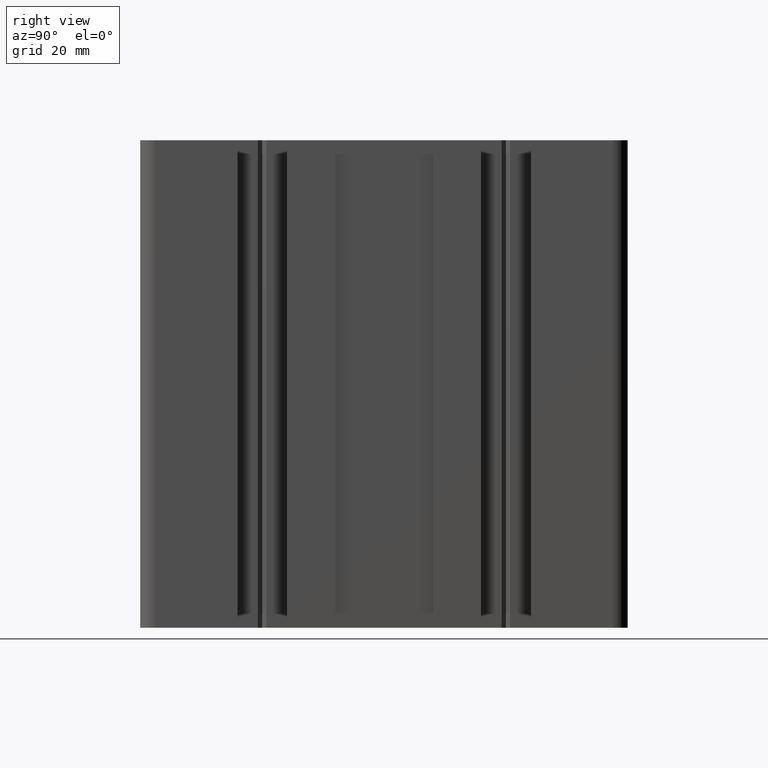
[diagram: clean part render]
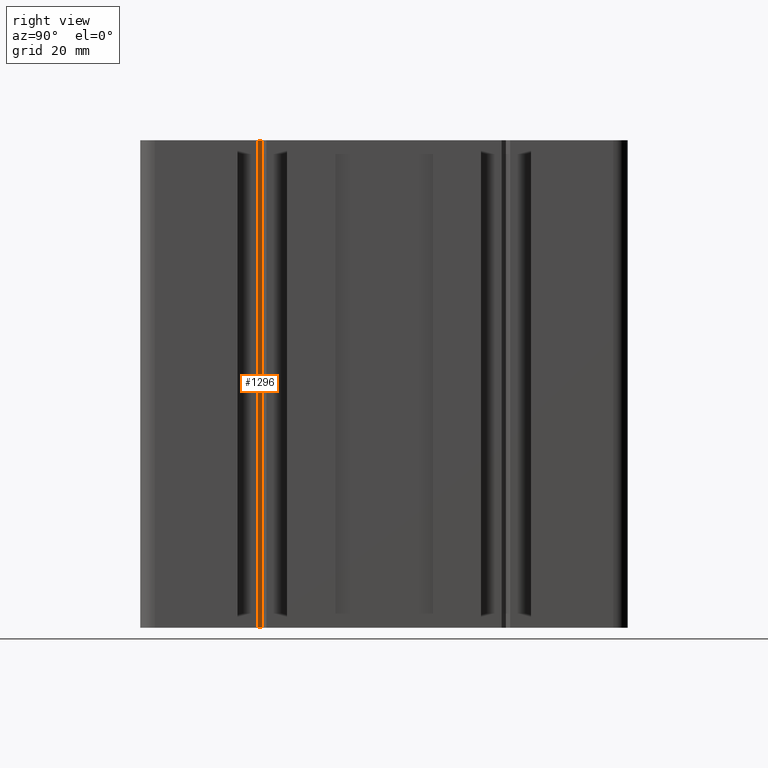
[diagram: same view with one face highlighted and labeled with its STEP entity id]
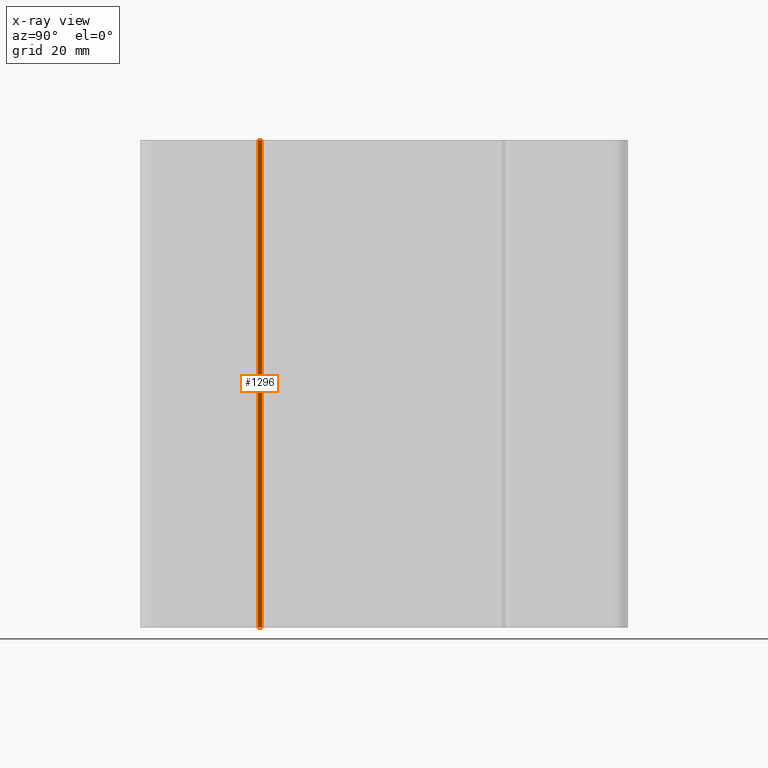
[diagram: x-ray of the same camera — body ghosted, the highlighted face saturated]
A machine part, right view. The second image highlights one B-rep face of the part: STEP entity #1296.
The next image is the same camera in x-ray: the body ghosted, the highlighted face saturated — about 0% of this face is hidden behind the body in this view.
In plain terms, the highlighted planar face has unit normal (-0.866, -0.5, 0).
Its self-contained STEP definition (entity closure, byte-faithful):
#139 = VERTEX_POINT ( 'NONE', #5002 ) ;
#142 = VERTEX_POINT ( 'NONE', #5003 ) ;
#167 = EDGE_CURVE ( 'NONE', #142, #139, #5071, .T. ) ;
#1295 = ORIENTED_EDGE ( 'NONE', *, *, #1360, .F. ) ;
#1296 = ADVANCED_FACE ( 'NONE', ( #6949 ), #6952, .F. ) ;
#1297 = ORIENTED_EDGE ( 'NONE', *, *, #167, .T. ) ;
#1299 = ORIENTED_EDGE ( 'NONE', *, *, #4310, .F. ) ;
#1308 = EDGE_LOOP ( 'NONE', ( #1297, #1295, #1299, #1347 ) ) ;
#1347 = ORIENTED_EDGE ( 'NONE', *, *, #1353, .T. ) ;
#1353 = EDGE_CURVE ( 'NONE', #4312, #142, #7031, .T. ) ;
#1360 = EDGE_CURVE ( 'NONE', #4318, #139, #7021, .T. ) ;
#4310 = EDGE_CURVE ( 'NONE', #4312, #4318, #11624, .T. ) ;
#4312 = VERTEX_POINT ( 'NONE', #11594 ) ;
#4318 = VERTEX_POINT ( 'NONE', #11613 ) ;
#5002 = CARTESIAN_POINT ( 'NONE',  ( 11.75000000000000000, -25.00000000000021000, 0.0000000000000000000 ) ) ;
#5003 = CARTESIAN_POINT ( 'NONE',  ( 12.25000000000000000, -25.86602540378465100, 0.0000000000000000000 ) ) ;
#5068 = DIRECTION ( 'NONE',  ( -0.4999999999999985000, 0.8660254037844394800, -0.0000000000000000000 ) ) ;
#5069 = VECTOR ( 'NONE', #5068, 1000.000000000000100 ) ;
#5070 = CARTESIAN_POINT ( 'NONE',  ( 11.75000000000000000, -25.00000000000021000, 0.0000000000000000000 ) ) ;
#5071 = LINE ( 'NONE', #5070, #5069 ) ;
#6905 = AXIS2_PLACEMENT_3D ( 'NONE', #6929, #6935, #6934 ) ;
#6929 = CARTESIAN_POINT ( 'NONE',  ( 11.75000000000000000, -25.00000000000021000, 100.0000000000000000 ) ) ;
#6934 = DIRECTION ( 'NONE',  ( 0.4999999999999985000, -0.8660254037844394800, 0.0000000000000000000 ) ) ;
#6935 = DIRECTION ( 'NONE',  ( -0.8660254037844394800, -0.4999999999999985000, 0.0000000000000000000 ) ) ;
#6949 = FACE_OUTER_BOUND ( 'NONE', #1308, .T. ) ;
#6952 = PLANE ( 'NONE',  #6905 ) ;
#7021 = LINE ( 'NONE', #7074, #7073 ) ;
#7022 = DIRECTION ( 'NONE',  ( -0.0000000000000000000, -0.0000000000000000000, -1.000000000000000000 ) ) ;
#7023 = VECTOR ( 'NONE', #7022, 1000.000000000000000 ) ;
#7024 = CARTESIAN_POINT ( 'NONE',  ( 12.25000000000000000, -25.86602540378465100, 100.0000000000000000 ) ) ;
#7031 = LINE ( 'NONE', #7024, #7023 ) ;
#7072 = DIRECTION ( 'NONE',  ( -0.0000000000000000000, -0.0000000000000000000, -1.000000000000000000 ) ) ;
#7073 = VECTOR ( 'NONE', #7072, 1000.000000000000000 ) ;
#7074 = CARTESIAN_POINT ( 'NONE',  ( 11.75000000000000000, -25.00000000000021000, 100.0000000000000000 ) ) ;
#11594 = CARTESIAN_POINT ( 'NONE',  ( 12.25000000000000000, -25.86602540378465100, 100.0000000000000000 ) ) ;
#11613 = CARTESIAN_POINT ( 'NONE',  ( 11.75000000000000000, -25.00000000000021000, 100.0000000000000000 ) ) ;
#11620 = DIRECTION ( 'NONE',  ( -0.4999999999999985000, 0.8660254037844394800, -0.0000000000000000000 ) ) ;
#11621 = VECTOR ( 'NONE', #11620, 1000.000000000000100 ) ;
#11623 = CARTESIAN_POINT ( 'NONE',  ( 11.75000000000000000, -25.00000000000021000, 100.0000000000000000 ) ) ;
#11624 = LINE ( 'NONE', #11623, #11621 ) ;